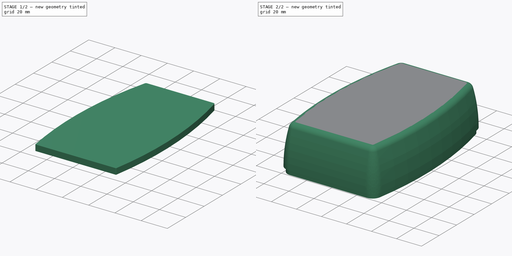
[diagram: build sequence overview — one tinted view per stage of 2, left to right]
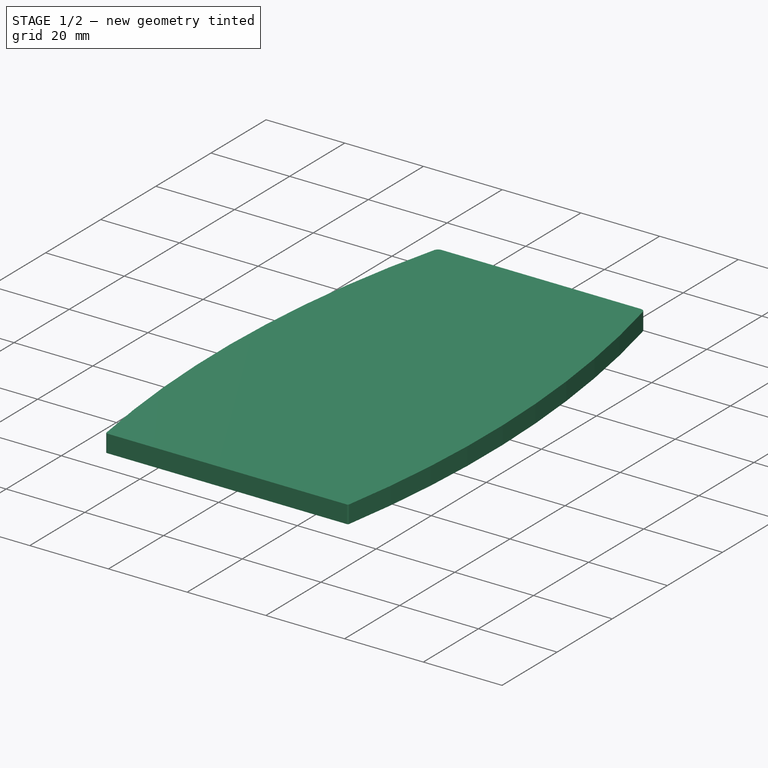
[diagram: stage 1 of 2 — iso view after this stage's code; geometry added in this stage tinted green]
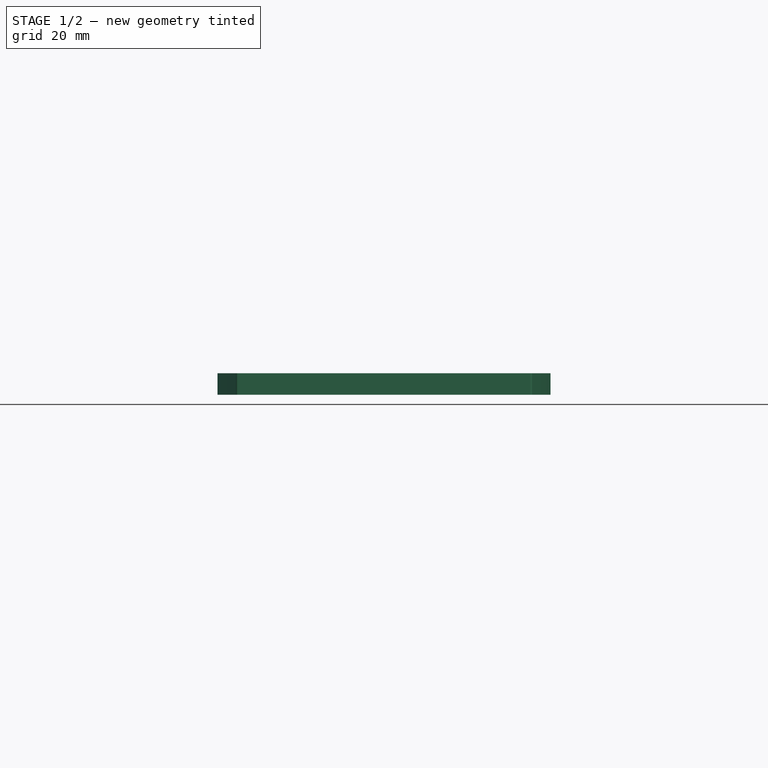
[diagram: stage 1 of 2 — front view after this stage's code; geometry added in this stage tinted green]
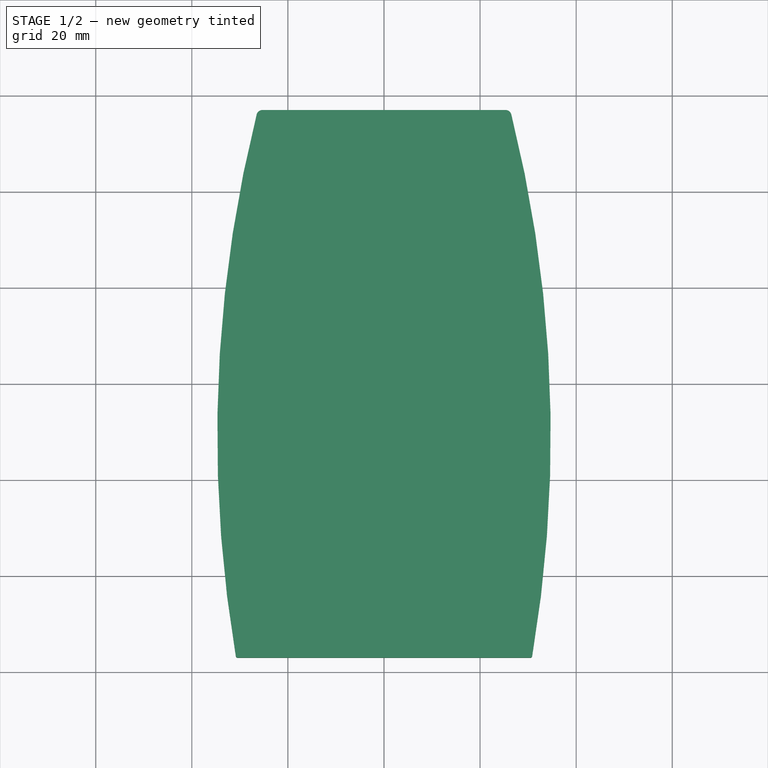
[diagram: stage 1 of 2 — top view after this stage's code; geometry added in this stage tinted green]
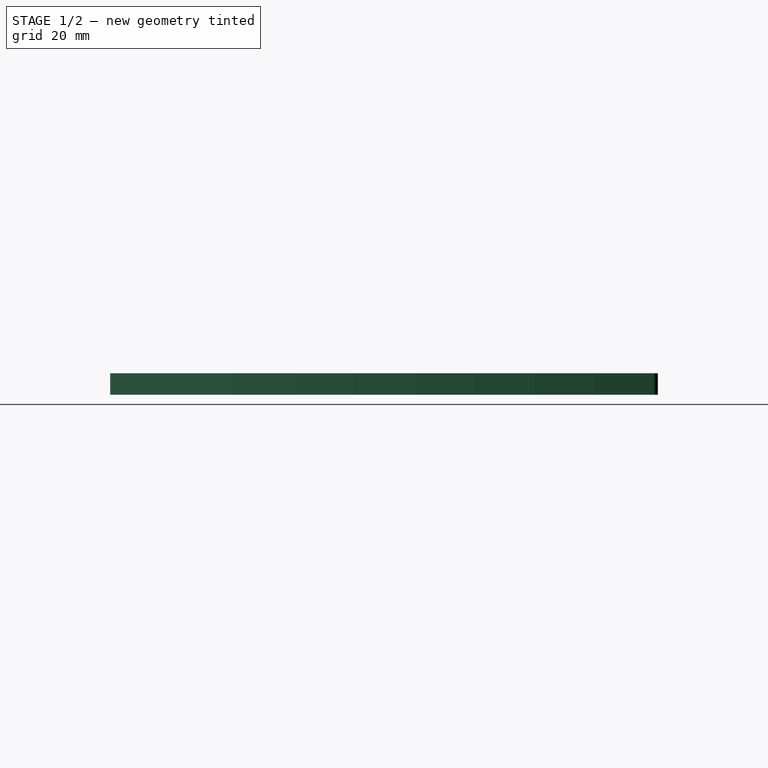
[diagram: stage 1 of 2 — right view after this stage's code; geometry added in this stage tinted green]
FCSTD DOCUMENT  (FreeCAD 0.20R29410 (Git))
Label: TopShell
License: All rights reserved
LicenseURL: http://en.wikipedia.org/wiki/All_rights_reserved
objects: Part::RuledSurface×10, Surface::Filling×8, Part::Compound×3, Part::Feature×3, Sketcher::SketchObject×2, PartDesign::AdditivePipe×1, PartDesign::Body×1, Part::MultiFuse×1
note: 30 computed .brp shape members not serialized (recipe doc carries the construction recipe); baked Part::Feature solids carry a one-line shape summary decoded from their .brp

FEATURE [PartDesign::Body] Body001  label="Walls"
  Group = -> [Sketch001,Sketch,AdditivePipe]
  Origin = -> Origin001
  Tip = -> AdditivePipe
FEATURE [Part::RuledSurface] Ruled_Surface
  Curve1 = -> AdditivePipe [Edge129]
  Curve2 = -> AdditivePipe [Edge57]
  Orientation = 0
FEATURE [Part::RuledSurface] Ruled_Surface001
  Curve1 = -> AdditivePipe [Edge131]
  Curve2 = -> AdditivePipe [Edge59]
  Orientation = 0
FEATURE [Part::RuledSurface] Ruled_Surface002
  Curve1 = -> Ruled_Surface001 [Edge1]
  Curve2 = -> Ruled_Surface [Edge1]
  Orientation = 0
FEATURE [Part::RuledSurface] Ruled_Surface003
  Curve1 = -> Ruled_Surface [Edge2]
  Curve2 = -> Ruled_Surface001 [Edge2]
  Orientation = 0
FEATURE [Part::RuledSurface] Ruled_Surface004
  Curve1 = -> Ruled_Surface [Edge3]
  Curve2 = -> Ruled_Surface001 [Edge3]
  Orientation = 0
FEATURE [Part::RuledSurface] Ruled_Surface005
  Curve1 = -> Ruled_Surface [Edge4]
  Curve2 = -> Ruled_Surface001 [Edge4]
  Orientation = 0
FEATURE [Part::Compound] Compound
  Links = -> [Ruled_Surface004,Ruled_Surface001,Ruled_Surface005,Ruled_Surface,Ruled_Surface003,Ruled_Surface002]
FEATURE [Part::Feature] Compound_solid  label="TopMain"
  shape: bbox 71.34 x 112.7 x 4.5 mm, 6 faces (baked)
FEATURE [Surface::Filling] Surface
  Anisotropy = false
  BoundaryEdges = -> [AdditivePipe,Compound_solid]
  BoundaryOrder = [0,0,0,0]
  Degree = 3
  Iterations = 2
  MaximumDegree = 8
  MaximumSegments = 9
  PointsOnCurve = 15
  TolAngular = 0.01
  TolCurvature = 0.1
  Tolerance2d = 1e-05
  Tolerance3d = 0.0001
FEATURE [Surface::Filling] Surface001
  Anisotropy = false
  BoundaryEdges = -> [AdditivePipe,Compound_solid]
  BoundaryOrder = [0,0,0,0]
  Degree = 3
  Iterations = 2
  MaximumDegree = 8
  MaximumSegments = 9
  PointsOnCurve = 15
  TolAngular = 0.01
  TolCurvature = 0.1
  Tolerance2d = 1e-05
  Tolerance3d = 0.0001
FEATURE [Part::RuledSurface] Ruled_Surface006
  Curve1 = -> Surface [Edge3]
  Curve2 = -> Surface001 [Edge3]
  Orientation = 0
FEATURE [Part::RuledSurface] Ruled_Surface007
  Curve1 = -> Surface [Edge1]
  Curve2 = -> Surface001 [Edge1]
  Orientation = 0
FEATURE [Surface::Filling] Surface002
  Anisotropy = false
  BoundaryEdges = -> [Ruled_Surface006,Surface001,Ruled_Surface007,Surface]
  BoundaryOrder = [0,0,0,0]
  Degree = 3
  Iterations = 2
  MaximumDegree = 8
  MaximumSegments = 9
  PointsOnCurve = 15
  TolAngular = 0.01
  TolCurvature = 0.1
  Tolerance2d = 1e-05
  Tolerance3d = 0.0001
FEATURE [Surface::Filling] Surface003
  Anisotropy = false
  BoundaryEdges = -> [Surface001,Ruled_Surface007,Surface,Ruled_Surface006]
  BoundaryOrder = [0,0,0,0]
  Degree = 3
  Iterations = 2
  MaximumDegree = 8
  MaximumSegments = 9
  PointsOnCurve = 15
  TolAngular = 0.01
  TolCurvature = 0.1
  Tolerance2d = 1e-05
  Tolerance3d = 0.0001
FEATURE [Part::Compound] Compound001
  Links = -> [Surface001,Surface003,Ruled_Surface006,Ruled_Surface007,Surface,Surface002]
FEATURE [Part::Feature] Compound001_solid  label="TopEdge1"
  shape: bbox 58.31 x 1.072 x 4.95 mm, 6 faces (baked)
FEATURE [Surface::Filling] Surface004
  Anisotropy = false
  BoundaryEdges = -> [AdditivePipe,Compound_solid]
  BoundaryOrder = [0,0,0,0]
  Degree = 3
  Iterations = 2
  MaximumDegree = 8
  MaximumSegments = 9
  PointsOnCurve = 15
  TolAngular = 0.01
  TolCurvature = 0.1
  Tolerance2d = 1e-05
  Tolerance3d = 0.0001
FEATURE [Surface::Filling] Surface005
  Anisotropy = false
  BoundaryEdges = -> [AdditivePipe,Compound_solid]
  BoundaryOrder = [0,0,0,0]
  Degree = 3
  Iterations = 2
  MaximumDegree = 8
  MaximumSegments = 9
  PointsOnCurve = 15
  TolAngular = 0.01
  TolCurvature = 0.1
  Tolerance2d = 1e-05
  Tolerance3d = 0.0001
FEATURE [Part::RuledSurface] Ruled_Surface008
  Curve1 = -> Surface005 [Edge2]
  Curve2 = -> Surface004 [Edge2]
  Orientation = 0
FEATURE [Part::RuledSurface] Ruled_Surface009
  Curve1 = -> Surface005 [Edge4]
  Curve2 = -> Surface004 [Edge3]
  Orientation = 0
FEATURE [Surface::Filling] Surface006
  Anisotropy = false
  BoundaryEdges = -> [Ruled_Surface008,Surface005,Ruled_Surface009,Surface004]
  BoundaryOrder = [0,0,0,0]
  Degree = 3
  Iterations = 2
  MaximumDegree = 8
  MaximumSegments = 9
  PointsOnCurve = 15
  TolAngular = 0.01
  TolCurvature = 0.1
  Tolerance2d = 1e-05
  Tolerance3d = 0.0001
FEATURE [Surface::Filling] Surface007
  Anisotropy = false
  BoundaryEdges = -> [Ruled_Surface009,Surface004,Ruled_Surface008,Surface005]
  BoundaryOrder = [0,0,0,0]
  Degree = 3
  Iterations = 2
  MaximumDegree = 8
  MaximumSegments = 9
  PointsOnCurve = 15
  TolAngular = 0.01
  TolCurvature = 0.1
  Tolerance2d = 1e-05
  Tolerance3d = 0.0001
FEATURE [Part::Compound] Compound002
  Links = -> [Ruled_Surface009,Surface004,Ruled_Surface008,Surface007,Surface005,Surface006]
FEATURE [Part::Feature] Compound002_solid  label="TopEdge2"
  shape: bbox 67.85 x 0.3813 x 4.95 mm, 6 faces (baked)
FEATURE [Part::MultiFuse] Fusion  label="Top"
  Shapes = -> [Compound_solid,Compound001_solid,Compound002_solid]
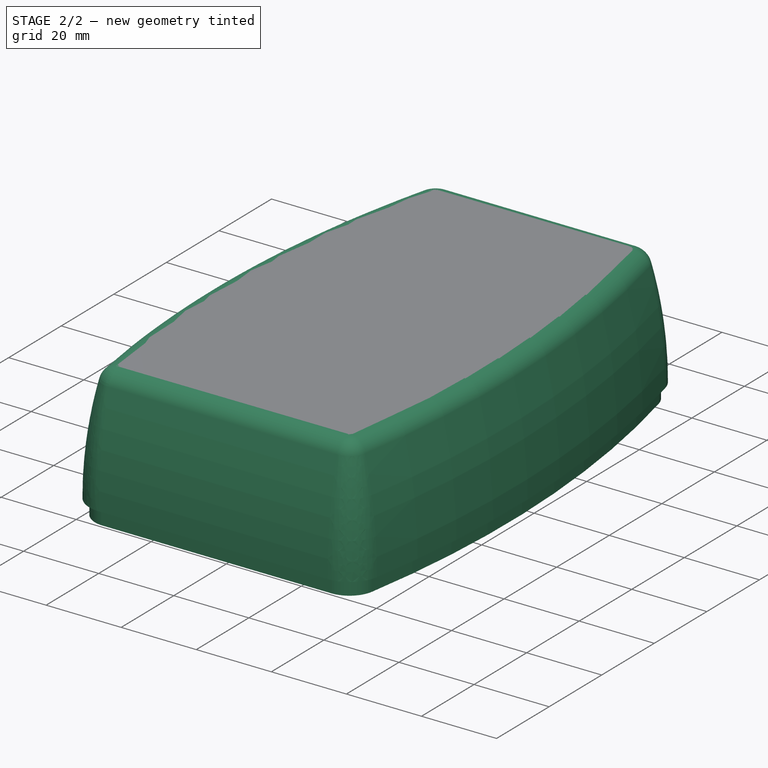
[diagram: stage 2 of 2 — iso view after this stage's code; geometry added in this stage tinted green]
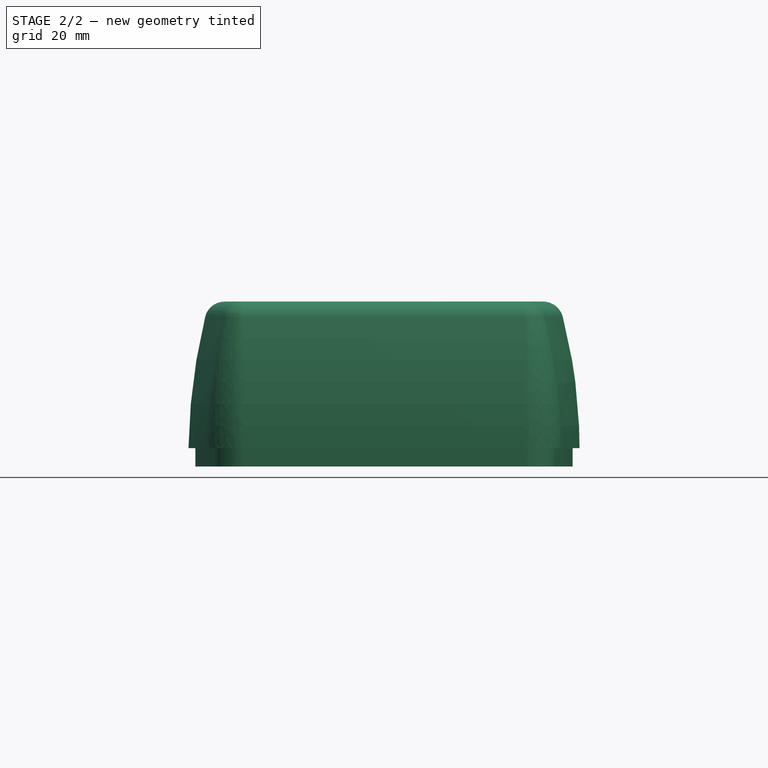
[diagram: stage 2 of 2 — front view after this stage's code; geometry added in this stage tinted green]
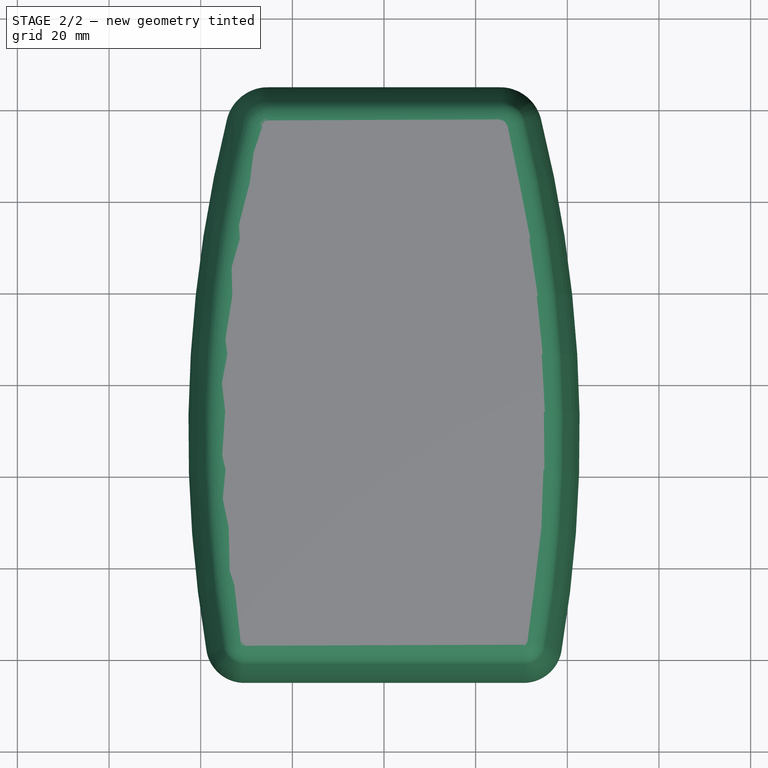
[diagram: stage 2 of 2 — top view after this stage's code; geometry added in this stage tinted green]
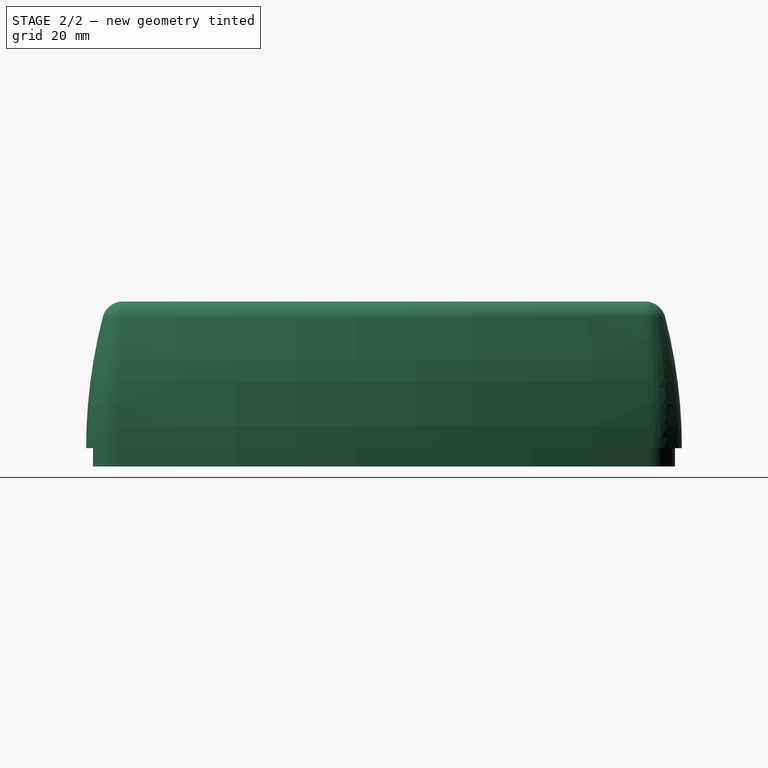
[diagram: stage 2 of 2 — right view after this stage's code; geometry added in this stage tinted green]
FEATURE [Sketcher::SketchObject] Sketch001  label="TopView"
  FullyConstrained = true
  MapMode = 5
  Support = -> [XY_Plane001]
  sketch-geometry (36):
    g0: LineSegment StartX=-40 StartY=65 StartZ=0 EndX=-45 EndY=-65 EndZ=0
    g1: LineSegment StartX=-45 StartY=-65 StartZ=0 EndX=45 EndY=-65 EndZ=0
    g2: LineSegment StartX=45 StartY=-65 StartZ=0 EndX=40 EndY=65 EndZ=0
    g3: LineSegment StartX=40 StartY=65 StartZ=0 EndX=-40 EndY=65 EndZ=0
    g4: GeomPoint X=0 Y=0 Z=0
    g5: GeomPoint X=0 Y=-65 Z=0
    g6: GeomPoint X=0 Y=65 Z=0
    g7: GeomPoint X=-44.7308 Y=-58 Z=0
    g8: GeomPoint X=-40.2692 Y=58 Z=0
    g9: GeomPoint X=44.7308 Y=-58 Z=0
    g10: GeomPoint X=40.2692 Y=58 Z=0
    g11: GeomPoint X=34.2692 Y=65 Z=0
    g12: GeomPoint X=-34.2692 Y=65 Z=0
    g13: GeomPoint X=-38.7308 Y=-65 Z=0
    g14: GeomPoint X=38.7308 Y=-65 Z=0
    g15: GeomPoint X=-34.2692 Y=58 Z=0
    g16: GeomPoint X=-38.7308 Y=-58 Z=0
    g17: LineSegment StartX=-44.7308 StartY=-58 StartZ=0 EndX=-38.7308 EndY=-58 EndZ=0
    g18: GeomPoint X=34.2692 Y=58 Z=0
    g19: GeomPoint X=38.7308 Y=-58 Z=0
    g20: LineSegment StartX=38.7308 StartY=-58 StartZ=0 EndX=44.7308 EndY=-58 EndZ=0
    g21: LineSegment StartX=38.7308 StartY=-58 StartZ=0 EndX=38.7308 EndY=-65 EndZ=0
    g22: LineSegment StartX=-38.7308 StartY=-58 StartZ=0 EndX=-38.7308 EndY=-65 EndZ=0
    g23: LineSegment StartX=-34.2692 StartY=65 StartZ=0 EndX=-34.2692 EndY=58 EndZ=0
    g24: LineSegment StartX=-34.2692 StartY=58 StartZ=0 EndX=-40.2692 EndY=58 EndZ=0
    g25: LineSegment StartX=34.2692 StartY=65 StartZ=0 EndX=34.2692 EndY=58 EndZ=0
    g26: LineSegment StartX=40.2692 StartY=58 StartZ=0 EndX=34.2692 EndY=58 EndZ=0
    g27: ArcOfCircle CenterX=241.252 CenterY=-10.6828 CenterZ=0 NormalX=0 NormalY=0 NormalZ=1 AngleXU=0 Radius=283.953 StartAngle=2.89729 EndAngle=3.30901
    g28: ArcOfCircle CenterX=-241.252 CenterY=-10.6828 CenterZ=0 NormalX=0 NormalY=0 NormalZ=1 AngleXU=0 Radius=283.953 StartAngle=6.11577 EndAngle=6.52749
    g29: GeomPoint X=-30.4485 Y=-65 Z=0
    g30: ArcOfCircle CenterX=-30.4485 CenterY=-56.6003 CenterZ=0 NormalX=0 NormalY=0 NormalZ=1 AngleXU=0 Radius=8.3997 StartAngle=3.30901 EndAngle=4.71239
    g31: ArcOfCircle CenterX=30.4485 CenterY=-56.6003 CenterZ=0 NormalX=0 NormalY=0 NormalZ=1 AngleXU=0 Radius=8.3997 StartAngle=4.71239 EndAngle=6.11577
    g32: LineSegment StartX=-30.4485 StartY=-65 StartZ=0 EndX=30.4485 EndY=-65 EndZ=0
    g33: ArcOfCircle CenterX=25.31 CenterY=55.7666 CenterZ=0 NormalX=0 NormalY=0 NormalZ=1 AngleXU=0 Radius=9.23337 StartAngle=0.244303 EndAngle=1.5708
    g34: ArcOfCircle CenterX=-25.31 CenterY=55.7666 CenterZ=0 NormalX=0 NormalY=0 NormalZ=1 AngleXU=0 Radius=9.23337 StartAngle=1.5708 EndAngle=2.89729
    g35: LineSegment StartX=-25.31 StartY=65 StartZ=0 EndX=25.31 EndY=65 EndZ=0
  constraints (72):
    c: Coincident(g0,g1)
    c: Coincident(g1,g2)
    c: Coincident(g2,g3)
    c: Coincident(g3,g0)
    c: Coincident(g4,g-1)
    c: DistanceX(g1,g1) = 90
    c: Symmetric(g0,g1,g-2)
    c: Symmetric(g2,g0,g-2)
    c: DistanceX(g3,g3) = 80
    c: PointOnObject(g5,g1)
    c: PointOnObject(g5,g-2)
    c: PointOnObject(g6,g3)
    c: Symmetric(g6,g5,g4)
    c: DistanceY(g0,g0) = 130
    c: PointOnObject(g7,g0)
    c: PointOnObject(g8,g0)
    c: PointOnObject(g11,g3)
    c: Symmetric(g12,g11,g-2)
    c: PointOnObject(g13,g1)
    c: Vertical(g12,g15)
    c: Horizontal(g15,g8)
    c: Vertical(g13,g16)
    c: Horizontal(g7,g16)
    c: Coincident(g17,g7)
    c: Coincident(g17,g16)
    c: Vertical(g14,g19)
    c: Horizontal(g9,g19)
    c: Vertical(g11,g18)
    c: Horizontal(g10,g18)
    c: Symmetric(g8,g10,g-2)
    c: Symmetric(g13,g14,g-2)
    c: Symmetric(g9,g7,g-2)
    c: Coincident(g20,g19)
    c: Coincident(g20,g9)
    c: Coincident(g21,g20)
    c: Coincident(g21,g14)
    c: Coincident(g22,g16)
    c: Coincident(g22,g13)
    c: Coincident(g23,g12)
    c: Coincident(g23,g15)
    c: Coincident(g24,g23)
    c: Coincident(g24,g8)
    c: Coincident(g25,g11)
    c: Coincident(g25,g18)
    c: Coincident(g26,g10)
    c: Coincident(g26,g25)
    c: DistanceX(g17,g17) = 6
    c: Equal(g20,g26)
    c: DistanceY(g22,g22) = 7
    c: Equal(g22,g23)
    c: Coincident(g27,g16)
    c: Coincident(g27,g15)
    c: Tangent(g27,g0)
    c: Coincident(g28,g19)
    c: Coincident(g28,g18)
    c: Tangent(g28,g2)
    c: PointOnObject(g29,g1)
    c: Coincident(g30,g29)
    c: Tangent(g30,g1)
    c: Tangent(g30,g27) = -1.5708
    c: PointOnObject(g31,g1)
    c: Tangent(g31,g28) = -1.5708
    c: Coincident(g32,g30)
    c: Tangent(g32,g31) = -1.5708
    c: PointOnObject(g33,g3)
    c: Tangent(g33,g3)
    c: Tangent(g33,g28) = -1.5708
    c: PointOnObject(g34,g3)
    c: Tangent(g34,g3)
    c: Tangent(g34,g27) = -1.5708
    c: Coincident(g35,g34)
    c: Coincident(g35,g33)
FEATURE [Sketcher::SketchObject] Sketch  label="CrossSectionView"
  ExternalGeometry = -> [Sketch001]
  FullyConstrained = true
  MapMode = 5
  Placement = pos=(0,0,0) rot=(0.57735,0.57735,0.57735;2.0944rad)
  Support = -> [YZ_Plane001]
  sketch-geometry (11):
    g0: LineSegment StartX=-65 StartY=-8.8e-15 StartZ=0 EndX=-63.5 EndY=0 EndZ=0
    g1: LineSegment StartX=-63.5 StartY=0 StartZ=0 EndX=-63.5 EndY=-4 EndZ=0
    g2: LineSegment StartX=-63.5 StartY=-4 StartZ=0 EndX=-62 EndY=-4 EndZ=0
    g3: LineSegment StartX=-62 StartY=-4 StartZ=0 EndX=-62 EndY=4 EndZ=0
    g4: LineSegment StartX=-62 StartY=4 StartZ=0 EndX=-60.5 EndY=4 EndZ=0
    g5: LineSegment StartX=-65 StartY=-8.8e-15 StartZ=0 EndX=-65 EndY=32 EndZ=0
    g6: LineSegment StartX=-65 StartY=32 StartZ=0 EndX=-57 EndY=32 EndZ=0
    g7: ArcOfCircle CenterX=49.2857 CenterY=-8.17264e-07 CenterZ=0 NormalX=0 NormalY=0 NormalZ=1 AngleXU=0 Radius=114.286 StartAngle=2.88841 EndAngle=3.14159
    g8: ArcOfCircle CenterX=-57 CenterY=27.5 CenterZ=0 NormalX=0 NormalY=0 NormalZ=1 AngleXU=0 Radius=4.5 StartAngle=1.5708 EndAngle=2.88841
    g9: LineSegment StartX=-57 StartY=32 StartZ=0 EndX=-57 EndY=27.5 EndZ=0
    g10: ArcOfCircle CenterX=53.6765 CenterY=-0.994378 CenterZ=0 NormalX=0 NormalY=0 NormalZ=1 AngleXU=0 Radius=114.286 StartAngle=2.88961 EndAngle=3.09788
  constraints (31):
    c: PointOnObject(g0,g-1)
    c: Horizontal(g2)
    c: Horizontal(g4)
    c: DistanceY(g1,g1) = 4
    c: DistanceY(g3,g3) = 8
    c: Coincident(g5,g6)
    c: Horizontal(g6)
    c: Vertical(g5)
    c: Coincident(g0,g-3)
    c: Coincident(g0,g7)
    c: Coincident(g0,g5)
    c: Tangent(g7,g8) = -1.5708
    c: Tangent(g6,g8) = 1.5708
    c: DistanceY(g5,g5) = 32
    c: Coincident(g2,g1)
    c: Coincident(g2,g3)
    c: Coincident(g1,g0)
    c: Coincident(g4,g3)
    c: Vertical(g1)
    c: Vertical(g3)
    c: Equal(g0,g2)
    c: Equal(g2,g4)
    c: DistanceX(g0,g4) = 4.5
    c: Tangent(g7,g5)
    c: DistanceX(g5,g8) = 8
    c: Coincident(g9,g8)
    c: DistanceY(g9,g9) = 4.5
    c: Coincident(g10,g4)
    c: Coincident(g10,g9)
    c: Equal(g10,g7)
    c: Coincident(g8,g9)
FEATURE [PartDesign::AdditivePipe] AdditivePipe
  AuxilleryCurvelinear = true
  AuxillerySpineTangent = false
  Binormal = (0,0,0)
  Mode = 0
  Placement = pos=(0,0,0) rot=(0.57735,0.57735,0.57735;2.0944rad)
  Profile = -> Sketch
  Spine = -> Sketch001 [Edge4,Edge3,Edge2,Edge1,Edge8,Edge7,Edge6,Edge5]
  SpineTangent = false
  Transformation = 0
  Transition = 0
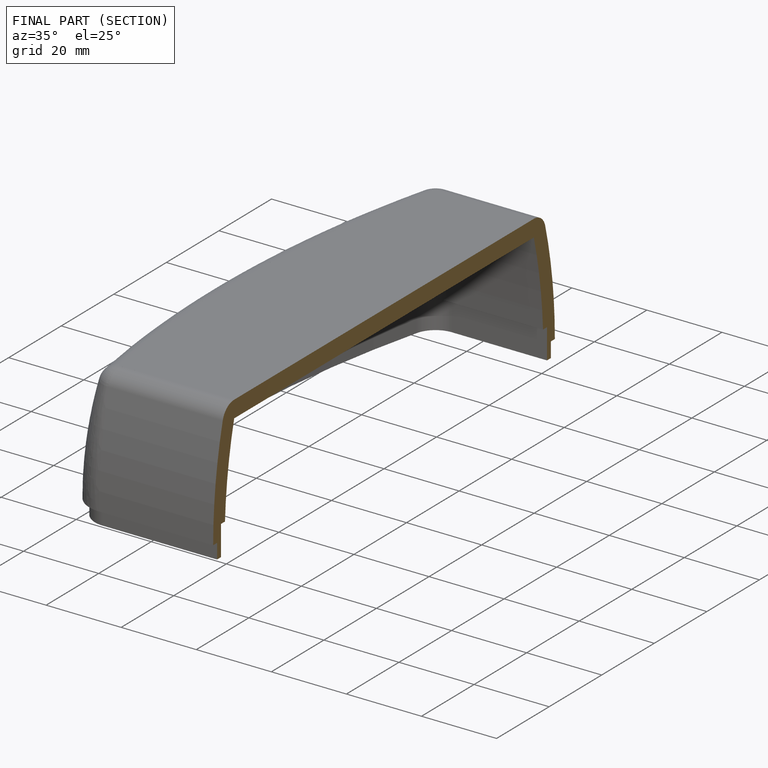
[diagram: finished part — half-section view (interior)]
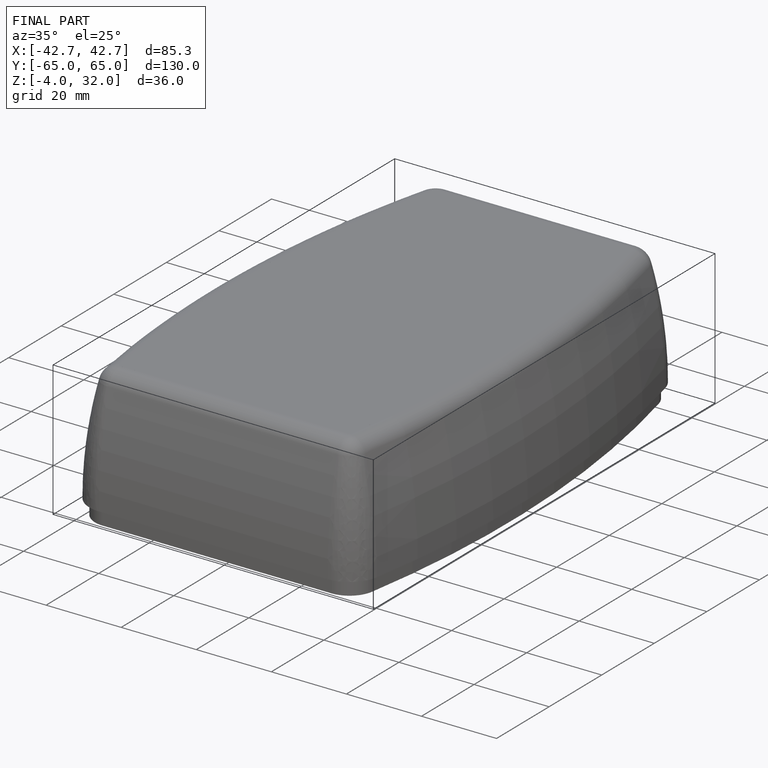
[diagram: finished part — iso view with bounding-box wireframe]
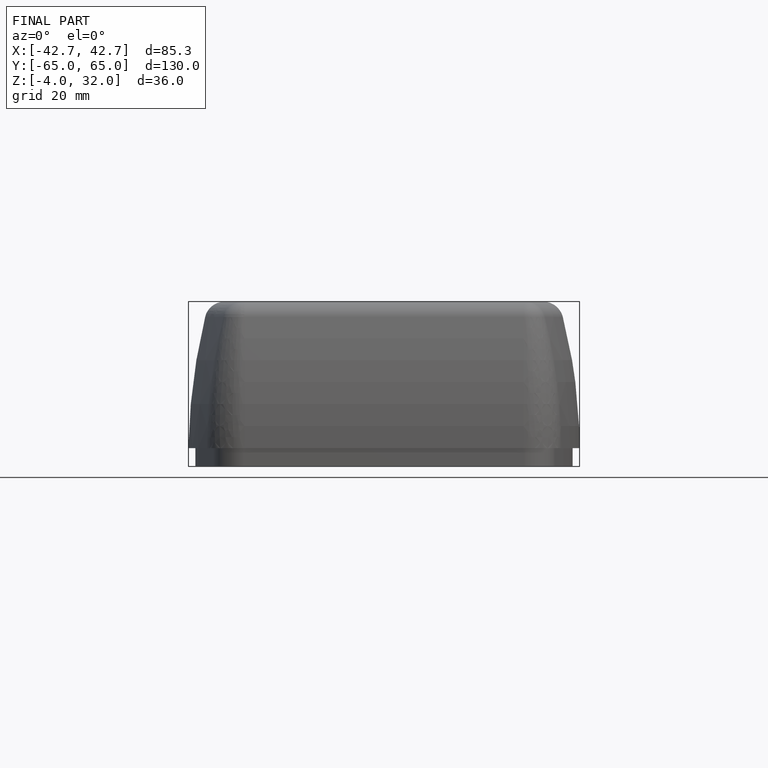
[diagram: finished part — front view with bounding-box wireframe]
